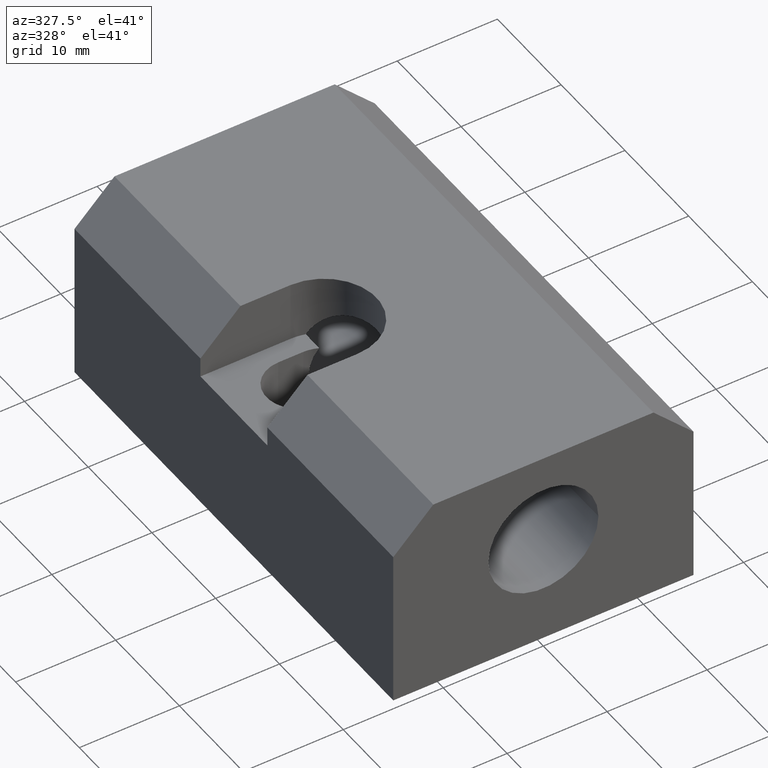
[diagram: clean part render]
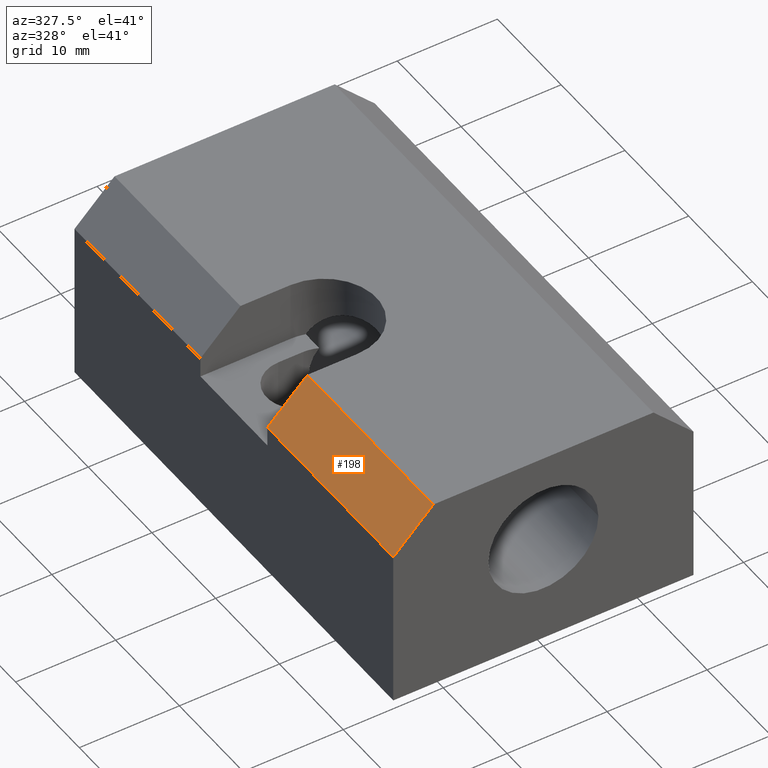
[diagram: same view with one face highlighted and labeled with its STEP entity id]
A machine part, auxiliary view. The second image highlights one B-rep face of the part: STEP entity #198.
In plain terms, the highlighted planar face has unit normal (-0.7071, -0, 0.7071).
Its self-contained STEP definition (entity closure, byte-faithful):
#111=CARTESIAN_POINT('',(-10.999999999956572,-30.250000516273744,19.999999219181277));
#112=VERTEX_POINT('',#111);
#119=CARTESIAN_POINT('',(-10.999999999956572,-50.000000516189836,19.999998709442266));
#120=VERTEX_POINT('',#119);
#121=CARTESIAN_POINT('',(-10.999999999956572,-30.250000516273744,19.999999219181269));
#122=DIRECTION('',(0.0,-1.000000000000000,-0.000000025809569));
#123=VECTOR('',#122,19.749999999916106);
#124=LINE('',#121,#123);
#125=EDGE_CURVE('',#112,#120,#124,.T.);
#168=CARTESIAN_POINT('',(-10.999999999956572,-0.000000516189850,19.999999999920746));
#169=DIRECTION('',(-0.707106781186628,-0.000000018250122,0.707106781186467));
#170=DIRECTION('',(-0.707106781186467,0.000000018249698,-0.707106781186628));
#171=AXIS2_PLACEMENT_3D('',#168,#169,#170);
#172=PLANE('',#171);
#173=ORIENTED_EDGE('',*,*,#125,.F.);
#174=CARTESIAN_POINT('',(-14.999999999940201,-30.250000413035472,15.999999219196710));
#175=VERTEX_POINT('',#174);
#176=CARTESIAN_POINT('',(-10.999999999956572,-30.250000516273744,19.999999219181277));
#177=DIRECTION('',(-0.707106781186464,0.000000018250120,-0.707106781186630));
#178=VECTOR('',#177,5.656854249469893);
#179=LINE('',#176,#178);
#180=EDGE_CURVE('',#112,#175,#179,.T.);
#181=ORIENTED_EDGE('',*,*,#180,.T.);
#182=CARTESIAN_POINT('',(-14.999999999940201,-50.000000412953952,15.999998709457714));
#183=VERTEX_POINT('',#182);
#184=CARTESIAN_POINT('',(-14.999999999940201,-30.250000413035472,15.999999219196715));
#185=DIRECTION('',(0.0,-1.000000000000000,-0.000000025809570));
#186=VECTOR('',#185,19.749999999918494);
#187=LINE('',#184,#186);
#188=EDGE_CURVE('',#175,#183,#187,.T.);
#189=ORIENTED_EDGE('',*,*,#188,.T.);
#190=CARTESIAN_POINT('',(-10.999999999956572,-50.000000516189836,19.999998709442266));
#191=DIRECTION('',(-0.707106781186467,0.000000018249698,-0.707106781186628));
#192=VECTOR('',#191,5.656854249469873);
#193=LINE('',#190,#192);
#194=EDGE_CURVE('',#120,#183,#193,.T.);
#195=ORIENTED_EDGE('',*,*,#194,.F.);
#196=EDGE_LOOP('',(#173,#181,#189,#195));
#197=FACE_OUTER_BOUND('',#196,.T.);
#198=ADVANCED_FACE('',(#197),#172,.T.);